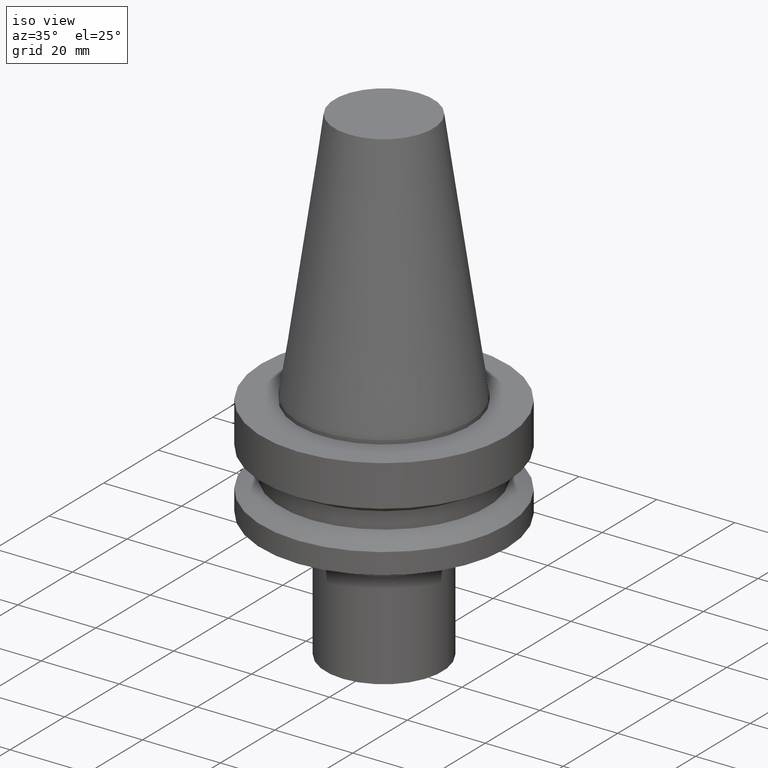
[diagram: clean part render]
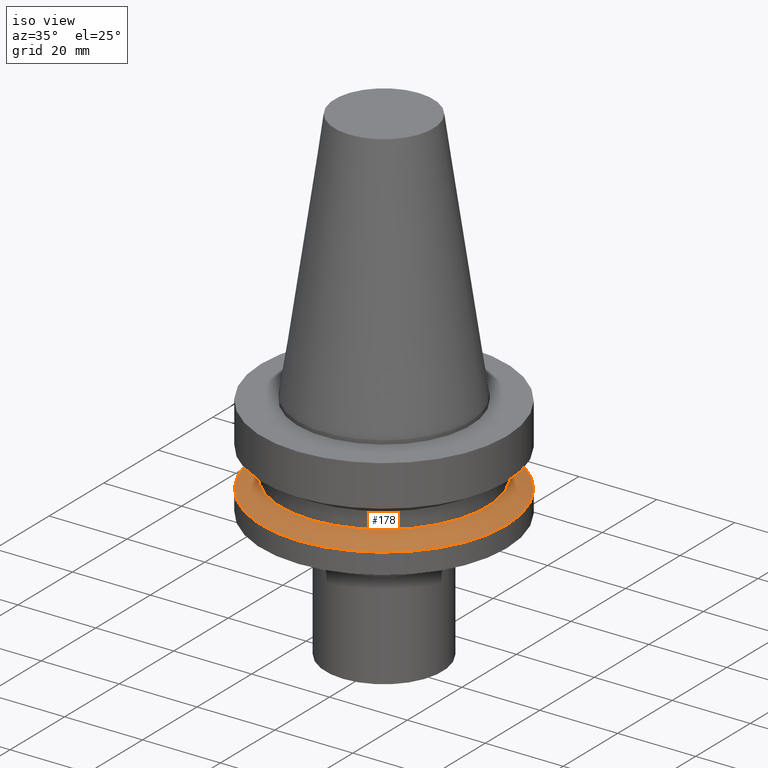
[diagram: same view with one face highlighted and labeled with its STEP entity id]
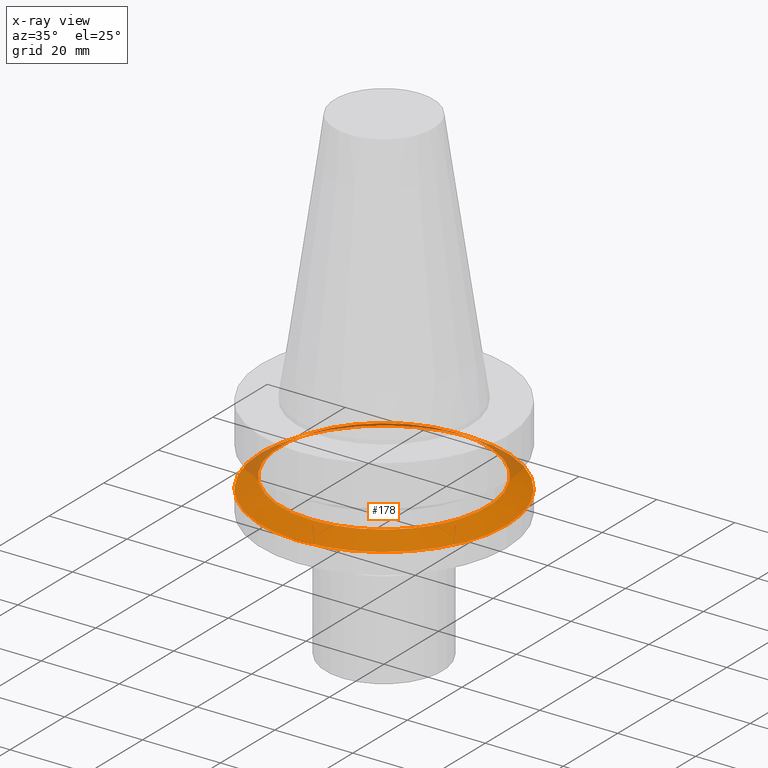
[diagram: x-ray of the same camera — body ghosted, the highlighted face saturated]
A machine part, iso view. The second image highlights one B-rep face of the part: STEP entity #178.
The next image is the same camera in x-ray: the body ghosted, the highlighted face saturated — about 12% of this face is hidden behind the body in this view.
In plain terms, the highlighted conical surface has half-angle 60 deg.
Its self-contained STEP definition (entity closure, byte-faithful):
#116=EDGE_CURVE('Unnamed[1]',#263,#263,#264,.T.);
#178=ADVANCED_FACE('Unnamed[1]',(#358,#359),#360,.T.);
#180=EDGE_CURVE('Unnamed[1]',#362,#362,#363,.T.);
#263=VERTEX_POINT('',#454);
#264=CIRCLE('',#455,31.5000000000007);
#358=FACE_BOUND('',#572,.T.);
#359=FACE_BOUND('',#573,.T.);
#360=CONICAL_SURFACE('',#574,29.0000000000003,1.04719755119651);
#362=VERTEX_POINT('',#577);
#363=CIRCLE('',#578,26.5);
#454=CARTESIAN_POINT('',(1.32473071268174E-015,31.5000000000007,-21.6344943473346));
#455=AXIS2_PLACEMENT_3D('',#648,#649,#650);
#572=EDGE_LOOP('',(#753));
#573=EDGE_LOOP('',(#754));
#574=AXIS2_PLACEMENT_3D('',#755,#756,#757);
#577=CARTESIAN_POINT('',(1.1479681728942E-015,26.5,-18.7477430013855));
#578=AXIS2_PLACEMENT_3D('',#758,#759,#760);
#648=CARTESIAN_POINT('',(1.32473071268174E-015,2.99174493092302E-014,-21.6344943473346));
#649=DIRECTION('',(6.12323399573677E-017,-5.36731610657127E-016,-1.0));
#650=DIRECTION('',(2.80381797188558E-032,1.0,-5.36731610657127E-016));
#753=ORIENTED_EDGE('',*,*,#116,.F.);
#754=ORIENTED_EDGE('',*,*,#180,.T.);
#755=CARTESIAN_POINT('',(1.23634944278797E-015,3.06921546589692E-014,-20.1911186743601));
#756=DIRECTION('',(6.12323399573677E-017,-5.36731610657146E-016,-1.0));
#757=DIRECTION('',(2.803817971885E-032,1.0,-5.36731610657146E-016));
#758=CARTESIAN_POINT('',(1.1479681728942E-015,3.14668600087081E-014,-18.7477430013855));
#759=DIRECTION('',(6.12323399573677E-017,-5.36731610657169E-016,-1.0));
#760=DIRECTION('',(2.80381797188566E-032,1.0,-5.36731610657169E-016));